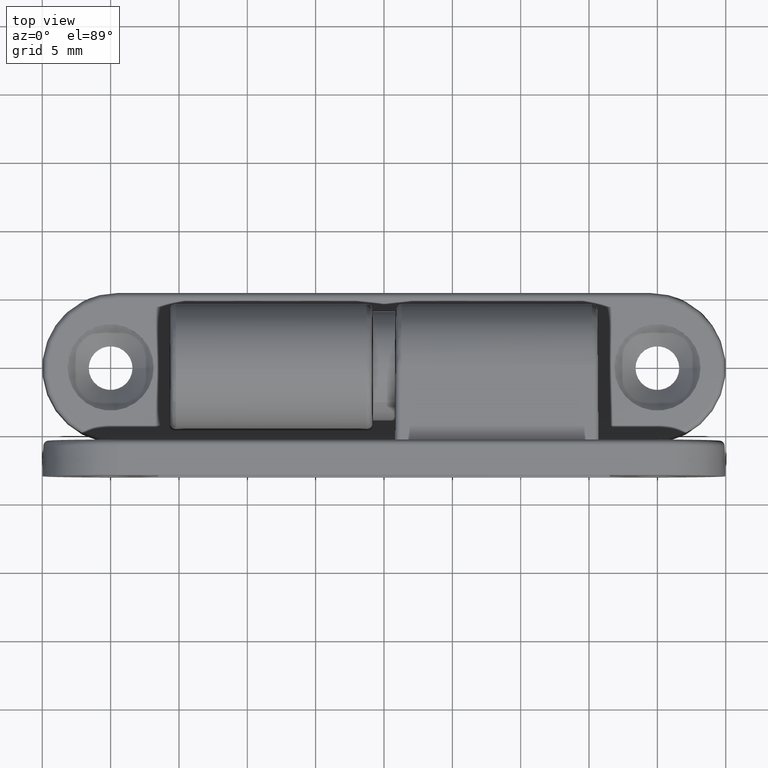
[diagram: clean part render]
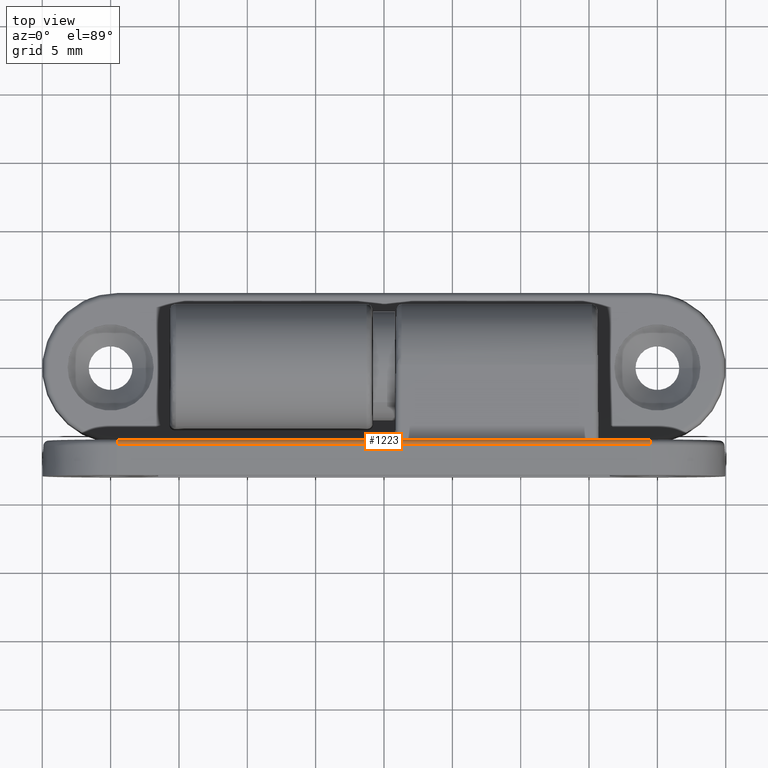
[diagram: same view with one face highlighted and labeled with its STEP entity id]
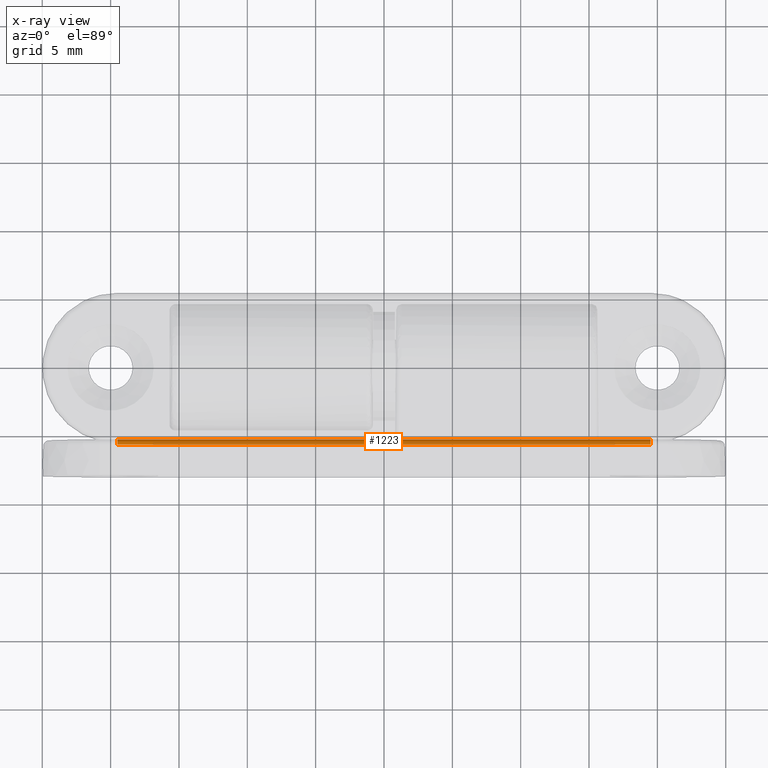
[diagram: x-ray of the same camera — body ghosted, the highlighted face saturated]
A machine part, top view. The second image highlights one B-rep face of the part: STEP entity #1223.
The next image is the same camera in x-ray: the body ghosted, the highlighted face saturated — about 0% of this face is hidden behind the body in this view.
In plain terms, the highlighted cylindrical surface (edge-blend (fillet) strip) has radius 0.4 mm, axis along (1, -0, 0).
Its self-contained STEP definition (entity closure, byte-faithful):
#84=LINE('',#1935,#156);
#94=LINE('',#1974,#166);
#156=VECTOR('',#1514,39.);
#166=VECTOR('',#1550,39.);
#293=FACE_OUTER_BOUND('',#383,.T.);
#383=EDGE_LOOP('',(#887,#888,#889,#890));
#504=CIRCLE('',#1333,0.4);
#505=CIRCLE('',#1334,0.4);
#577=VERTEX_POINT('',#1933);
#578=VERTEX_POINT('',#1934);
#593=VERTEX_POINT('',#1971);
#594=VERTEX_POINT('',#1973);
#692=EDGE_CURVE('',#577,#578,#84,.T.);
#712=EDGE_CURVE('',#593,#594,#94,.T.);
#714=EDGE_CURVE('',#593,#578,#504,.T.);
#715=EDGE_CURVE('',#577,#594,#505,.T.);
#887=ORIENTED_EDGE('',*,*,#714,.T.);
#888=ORIENTED_EDGE('',*,*,#692,.F.);
#889=ORIENTED_EDGE('',*,*,#715,.T.);
#890=ORIENTED_EDGE('',*,*,#712,.F.);
#1180=CYLINDRICAL_SURFACE('',#1332,0.4);
#1223=ADVANCED_FACE('',(#293),#1180,.T.);
#1332=AXIS2_PLACEMENT_3D('',#1976,#1552,#1553);
#1333=AXIS2_PLACEMENT_3D('',#1977,#1554,#1555);
#1334=AXIS2_PLACEMENT_3D('',#1978,#1556,#1557);
#1514=DIRECTION('',(1.,0.,-1.22464679914735E-16));
#1550=DIRECTION('',(-1.,0.,1.22464679914735E-16));
#1552=DIRECTION('center_axis',(1.,0.,-1.22464679914735E-16));
#1553=DIRECTION('ref_axis',(1.22464679914735E-16,4.44089209850063E-16,1.));
#1554=DIRECTION('center_axis',(-1.,0.,1.22464679914735E-16));
#1555=DIRECTION('ref_axis',(1.22464679914735E-16,4.44089209850063E-16,1.));
#1556=DIRECTION('center_axis',(1.,0.,-1.22464679914735E-16));
#1557=DIRECTION('ref_axis',(1.22464679914735E-16,4.44089209850063E-16,1.));
#1933=CARTESIAN_POINT('',(-19.5,13.1115683915526,5.45000000000092));
#1934=CARTESIAN_POINT('',(19.5,13.1115683915526,5.45000000000092));
#1935=CARTESIAN_POINT('',(20.,13.1115683915526,5.45000000000092));
#1971=CARTESIAN_POINT('',(19.5,13.511507469615,5.84301903742603));
#1973=CARTESIAN_POINT('',(-19.5,13.5115074696151,5.84301903742601));
#1974=CARTESIAN_POINT('',(-20.,13.5115074696151,5.84301903742601));
#1976=CARTESIAN_POINT('Origin',(20.,13.1115683915526,5.85000000000092));
#1977=CARTESIAN_POINT('Origin',(19.5,13.1115683915526,5.85000000000092));
#1978=CARTESIAN_POINT('Origin',(-19.5,13.1115683915526,5.85000000000092));